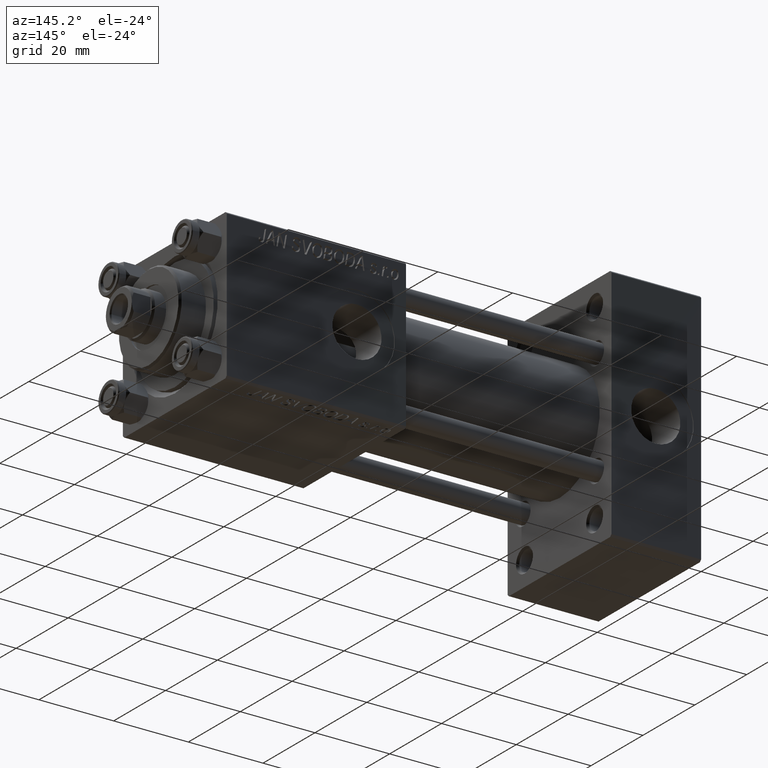
[diagram: clean part render]
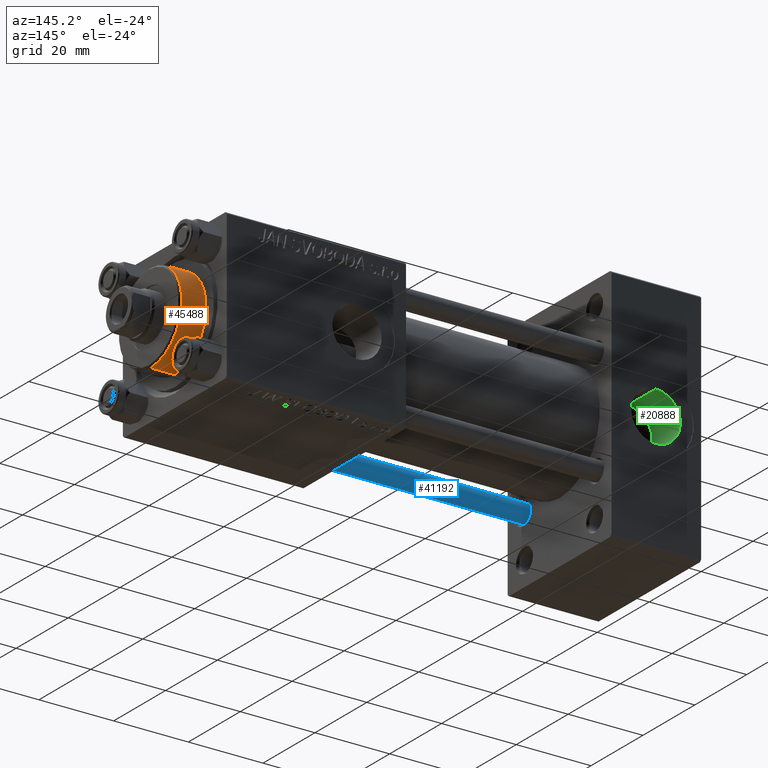
[diagram: same view with three faces highlighted in distinct colors, each labeled with its STEP entity id]
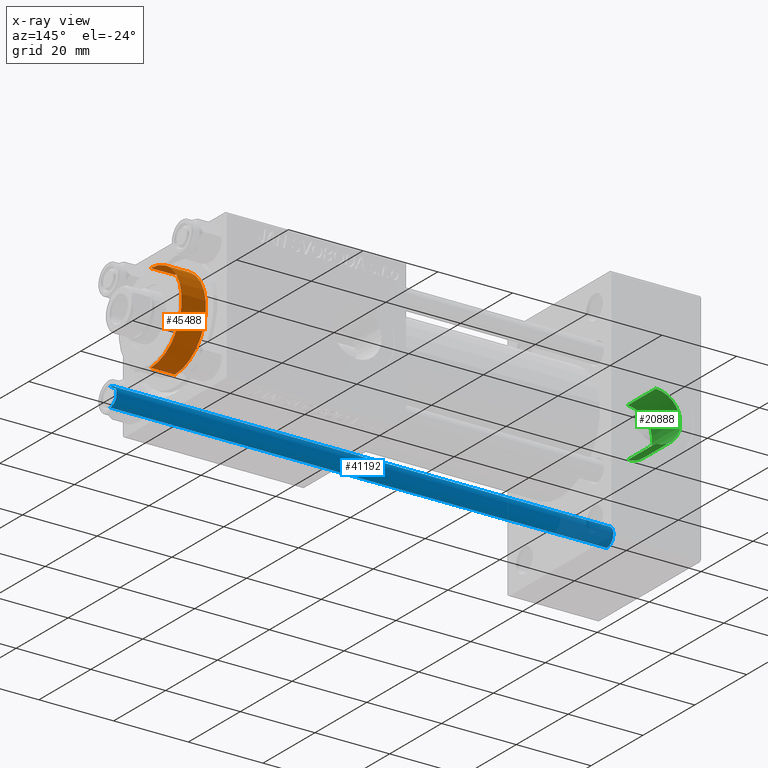
[diagram: x-ray of the same camera — body ghosted, the three highlighted faces saturated]
A machine part, auxiliary view with three faces highlighted in distinct colors.
The next image is the same camera in x-ray (body ghosted, the three faces saturated) — at least one of them is partly hidden behind the body in this view.
Their STEP definitions:

[orange] entity #45488 — the highlighted cylindrical surface (partial cylindrical patch) has radius 12 mm, axis along (-1, -0, 0).
#2493 = VERTEX_POINT ( 'NONE', #25839 ) ;
#3304 = DIRECTION ( 'NONE',  ( -0.000000000000000000, -0.000000000000000000, -1.000000000000000000 ) ) ;
#3789 = LINE ( 'NONE', #30048, #25732 ) ;
#4025 = AXIS2_PLACEMENT_3D ( 'NONE', #13262, #24861, #36455 ) ;
#6149 = CARTESIAN_POINT ( 'NONE',  ( 0.000000000000000000, 0.000000000000000000, 28.69999999999999929 ) ) ;
#6550 = EDGE_LOOP ( 'NONE', ( #27439, #17080, #16534, #18145 ) ) ;
#8633 = VECTOR ( 'NONE', #20098, 1000.000000000000000 ) ;
#10238 = DIRECTION ( 'NONE',  ( 1.000000000000000000, 0.000000000000000000, 0.000000000000000000 ) ) ;
#10440 = AXIS2_PLACEMENT_3D ( 'NONE', #6149, #29122, #44501 ) ;
#13035 = CARTESIAN_POINT ( 'NONE',  ( 12.00000000000000178, 1.469576158976824144E-15, 28.69999999999999929 ) ) ;
#13262 = CARTESIAN_POINT ( 'NONE',  ( 0.000000000000000000, 0.000000000000000000, 35.70000000000000284 ) ) ;
#16534 = ORIENTED_EDGE ( 'NONE', *, *, #43707, .T. ) ;
#17080 = ORIENTED_EDGE ( 'NONE', *, *, #31218, .T. ) ;
#18145 = ORIENTED_EDGE ( 'NONE', *, *, #43172, .F. ) ;
#19721 = VERTEX_POINT ( 'NONE', #13035 ) ;
#20098 = DIRECTION ( 'NONE',  ( -0.000000000000000000, -0.000000000000000000, -1.000000000000000000 ) ) ;
#24118 = EDGE_CURVE ( 'NONE', #45938, #49890, #26934, .T. ) ;
#24861 = DIRECTION ( 'NONE',  ( -0.000000000000000000, -0.000000000000000000, -1.000000000000000000 ) ) ;
#25732 = VECTOR ( 'NONE', #3304, 1000.000000000000000 ) ;
#25839 = CARTESIAN_POINT ( 'NONE',  ( -12.00000000000000178, 0.000000000000000000, 28.69999999999999929 ) ) ;
#26526 = CIRCLE ( 'NONE', #10440, 12.00000000000000178 ) ;
#26934 = CIRCLE ( 'NONE', #38214, 12.00000000000000178 ) ;
#27404 = CARTESIAN_POINT ( 'NONE',  ( 12.00000000000000178, 1.469576158976824144E-15, 35.70000000000000284 ) ) ;
#27439 = ORIENTED_EDGE ( 'NONE', *, *, #24118, .T. ) ;
#29122 = DIRECTION ( 'NONE',  ( 0.000000000000000000, 0.000000000000000000, 1.000000000000000000 ) ) ;
#30048 = CARTESIAN_POINT ( 'NONE',  ( -12.00000000000000178, 0.000000000000000000, 35.70000000000000284 ) ) ;
#31218 = EDGE_CURVE ( 'NONE', #49890, #19721, #46319, .T. ) ;
#32949 = DIRECTION ( 'NONE',  ( 0.000000000000000000, 0.000000000000000000, -1.000000000000000000 ) ) ;
#36207 = CYLINDRICAL_SURFACE ( 'NONE', #4025, 12.00000000000000178 ) ;
#36455 = DIRECTION ( 'NONE',  ( -1.000000000000000000, 0.000000000000000000, 0.000000000000000000 ) ) ;
#38214 = AXIS2_PLACEMENT_3D ( 'NONE', #40508, #32949, #10238 ) ;
#40242 = FACE_OUTER_BOUND ( 'NONE', #6550, .T. ) ;
#40508 = CARTESIAN_POINT ( 'NONE',  ( 0.000000000000000000, 0.000000000000000000, 35.19999999999999574 ) ) ;
#41735 = CARTESIAN_POINT ( 'NONE',  ( -12.00000000000000178, 0.000000000000000000, 35.19999999999999574 ) ) ;
#43172 = EDGE_CURVE ( 'NONE', #45938, #2493, #3789, .T. ) ;
#43707 = EDGE_CURVE ( 'NONE', #19721, #2493, #26526, .T. ) ;
#44501 = DIRECTION ( 'NONE',  ( 1.000000000000000000, 0.000000000000000000, 0.000000000000000000 ) ) ;
#45013 = CARTESIAN_POINT ( 'NONE',  ( 12.00000000000000178, 1.469576158976824144E-15, 35.19999999999999574 ) ) ;
#45488 = ADVANCED_FACE ( 'NONE', ( #40242 ), #36207, .T. ) ;
#45938 = VERTEX_POINT ( 'NONE', #41735 ) ;
#46319 = LINE ( 'NONE', #27404, #8633 ) ;
#49890 = VERTEX_POINT ( 'NONE', #45013 ) ;

[blue] entity #41192 — the highlighted cylindrical surface (edge-blend (fillet) strip) has radius 2.5 mm, axis along (1, -0, -0).
#2330 = DIRECTION ( 'NONE',  ( -0.000000000000000000, -0.000000000000000000, -1.000000000000000000 ) ) ;
#2513 = CARTESIAN_POINT ( 'NONE',  ( 2.500000000000000000, 3.061616997868383141E-16, 134.0000000000000000 ) ) ;
#3393 = LINE ( 'NONE', #18810, #20818 ) ;
#3518 = ORIENTED_EDGE ( 'NONE', *, *, #37271, .T. ) ;
#7521 = VERTEX_POINT ( 'NONE', #24344 ) ;
#7535 = ORIENTED_EDGE ( 'NONE', *, *, #48772, .T. ) ;
#8017 = DIRECTION ( 'NONE',  ( 1.000000000000000000, 0.000000000000000000, 0.000000000000000000 ) ) ;
#11504 = DIRECTION ( 'NONE',  ( 1.000000000000000000, 0.000000000000000000, 0.000000000000000000 ) ) ;
#13617 = ORIENTED_EDGE ( 'NONE', *, *, #41032, .F. ) ;
#13900 = VERTEX_POINT ( 'NONE', #25242 ) ;
#14136 = LINE ( 'NONE', #2513, #24043 ) ;
#14657 = AXIS2_PLACEMENT_3D ( 'NONE', #22916, #16101, #8017 ) ;
#16101 = DIRECTION ( 'NONE',  ( 0.000000000000000000, 0.000000000000000000, -1.000000000000000000 ) ) ;
#16290 = DIRECTION ( 'NONE',  ( -0.000000000000000000, -0.000000000000000000, 1.000000000000000000 ) ) ;
#17581 = VERTEX_POINT ( 'NONE', #28196 ) ;
#18810 = CARTESIAN_POINT ( 'NONE',  ( -2.500000000000000000, 0.000000000000000000, 134.0000000000000000 ) ) ;
#19534 = DIRECTION ( 'NONE',  ( -0.000000000000000000, -0.000000000000000000, -1.000000000000000000 ) ) ;
#20818 = VECTOR ( 'NONE', #19534, 1000.000000000000000 ) ;
#21329 = EDGE_CURVE ( 'NONE', #37428, #17581, #27624, .T. ) ;
#21522 = CYLINDRICAL_SURFACE ( 'NONE', #48218, 2.500000000000000000 ) ;
#22916 = CARTESIAN_POINT ( 'NONE',  ( 0.000000000000000000, 0.000000000000000000, 133.5000000000000568 ) ) ;
#23222 = ORIENTED_EDGE ( 'NONE', *, *, #21329, .T. ) ;
#24043 = VECTOR ( 'NONE', #40368, 1000.000000000000000 ) ;
#24344 = CARTESIAN_POINT ( 'NONE',  ( -2.500000000000000000, 0.000000000000000000, 133.5000000000000568 ) ) ;
#25242 = CARTESIAN_POINT ( 'NONE',  ( 2.500000000000000000, 3.061616997868383141E-16, 133.5000000000000568 ) ) ;
#26833 = AXIS2_PLACEMENT_3D ( 'NONE', #46290, #16290, #11504 ) ;
#27624 = CIRCLE ( 'NONE', #26833, 2.500000000000000000 ) ;
#28196 = CARTESIAN_POINT ( 'NONE',  ( -2.500000000000000000, 0.000000000000000000, 0.4999999999999726885 ) ) ;
#36896 = CARTESIAN_POINT ( 'NONE',  ( 0.000000000000000000, 0.000000000000000000, 134.0000000000000000 ) ) ;
#37271 = EDGE_CURVE ( 'NONE', #13900, #37428, #14136, .T. ) ;
#37428 = VERTEX_POINT ( 'NONE', #49206 ) ;
#40368 = DIRECTION ( 'NONE',  ( -0.000000000000000000, -0.000000000000000000, -1.000000000000000000 ) ) ;
#41032 = EDGE_CURVE ( 'NONE', #7521, #17581, #3393, .T. ) ;
#41192 = ADVANCED_FACE ( 'NONE', ( #45223 ), #21522, .T. ) ;
#44712 = DIRECTION ( 'NONE',  ( -1.000000000000000000, 0.000000000000000000, 0.000000000000000000 ) ) ;
#44919 = EDGE_LOOP ( 'NONE', ( #7535, #3518, #23222, #13617 ) ) ;
#45223 = FACE_OUTER_BOUND ( 'NONE', #44919, .T. ) ;
#46290 = CARTESIAN_POINT ( 'NONE',  ( 0.000000000000000000, 0.000000000000000000, 0.4999999999999726885 ) ) ;
#46824 = CIRCLE ( 'NONE', #14657, 2.500000000000000000 ) ;
#48218 = AXIS2_PLACEMENT_3D ( 'NONE', #36896, #2330, #44712 ) ;
#48772 = EDGE_CURVE ( 'NONE', #7521, #13900, #46824, .T. ) ;
#49206 = CARTESIAN_POINT ( 'NONE',  ( 2.500000000000000000, 3.061616997868383141E-16, 0.4999999999999726885 ) ) ;

[green] entity #20888 — the highlighted cylindrical surface (edge-blend (fillet) strip) has radius 6.58 mm, axis along (0, 1, 0).
#72 = EDGE_CURVE ( 'NONE', #44613, #26878, #37336, .T. ) ;
#112 = EDGE_CURVE ( 'NONE', #29713, #1210, #33061, .T. ) ;
#1209 = DIRECTION ( 'NONE',  ( 0.000000000000000000, 1.000000000000000000, 0.000000000000000000 ) ) ;
#1210 = VERTEX_POINT ( 'NONE', #27971 ) ;
#1254 = EDGE_CURVE ( 'NONE', #26878, #1210, #30229, .T. ) ;
#5512 = DIRECTION ( 'NONE',  ( 0.000000000000000000, 0.000000000000000000, 1.000000000000000000 ) ) ;
#6561 = ORIENTED_EDGE ( 'NONE', *, *, #23947, .T. ) ;
#6588 = CARTESIAN_POINT ( 'NONE',  ( 12.00000000000000000, 19.79999999999999716, -6.579999999999998295 ) ) ;
#8426 = AXIS2_PLACEMENT_3D ( 'NONE', #20009, #8640, #30848 ) ;
#8640 = DIRECTION ( 'NONE',  ( -0.000000000000000000, -1.000000000000000000, -0.000000000000000000 ) ) ;
#10609 = DIRECTION ( 'NONE',  ( -0.000000000000000000, 1.000000000000000000, -0.000000000000000000 ) ) ;
#13721 = ORIENTED_EDGE ( 'NONE', *, *, #1254, .T. ) ;
#13914 = DIRECTION ( 'NONE',  ( -0.000000000000000000, 1.000000000000000000, -0.000000000000000000 ) ) ;
#14907 = VECTOR ( 'NONE', #10609, 1000.000000000000000 ) ;
#15662 = ORIENTED_EDGE ( 'NONE', *, *, #112, .F. ) ;
#16296 = EDGE_LOOP ( 'NONE', ( #6561, #43463, #13721, #15662 ) ) ;
#17946 = CARTESIAN_POINT ( 'NONE',  ( 12.00000000000000000, 8.999999999999998224, 6.579999999999998295 ) ) ;
#18475 = CARTESIAN_POINT ( 'NONE',  ( 12.00000000000000000, 8.999999999999998224, 0.000000000000000000 ) ) ;
#20009 = CARTESIAN_POINT ( 'NONE',  ( 12.00000000000000000, 8.939999999999994174, 0.000000000000000000 ) ) ;
#20888 = ADVANCED_FACE ( 'NONE', ( #32841 ), #29793, .F. ) ;
#21262 = CARTESIAN_POINT ( 'NONE',  ( 12.00000000000000000, 8.939999999999994174, 6.579999999999998295 ) ) ;
#21343 = VECTOR ( 'NONE', #21956, 1000.000000000000000 ) ;
#21461 = CARTESIAN_POINT ( 'NONE',  ( 12.00000000000000000, 8.999999999999998224, -6.579999999999998295 ) ) ;
#21956 = DIRECTION ( 'NONE',  ( -0.000000000000000000, 1.000000000000000000, -0.000000000000000000 ) ) ;
#23947 = EDGE_CURVE ( 'NONE', #29713, #44613, #39824, .T. ) ;
#26878 = VERTEX_POINT ( 'NONE', #6588 ) ;
#27971 = CARTESIAN_POINT ( 'NONE',  ( 12.00000000000000000, 19.79999999999999716, 6.579999999999998295 ) ) ;
#29713 = VERTEX_POINT ( 'NONE', #21262 ) ;
#29793 = CYLINDRICAL_SURFACE ( 'NONE', #44554, 6.579999999999998295 ) ;
#30229 = CIRCLE ( 'NONE', #33462, 6.579999999999998295 ) ;
#30848 = DIRECTION ( 'NONE',  ( 0.000000000000000000, 0.000000000000000000, 1.000000000000000000 ) ) ;
#32841 = FACE_OUTER_BOUND ( 'NONE', #16296, .T. ) ;
#33061 = LINE ( 'NONE', #17946, #21343 ) ;
#33330 = DIRECTION ( 'NONE',  ( 0.000000000000000000, 0.000000000000000000, 1.000000000000000000 ) ) ;
#33462 = AXIS2_PLACEMENT_3D ( 'NONE', #47142, #1209, #5512 ) ;
#37336 = LINE ( 'NONE', #21461, #14907 ) ;
#39824 = CIRCLE ( 'NONE', #8426, 6.579999999999998295 ) ;
#43463 = ORIENTED_EDGE ( 'NONE', *, *, #72, .T. ) ;
#44554 = AXIS2_PLACEMENT_3D ( 'NONE', #18475, #13914, #33330 ) ;
#44613 = VERTEX_POINT ( 'NONE', #45569 ) ;
#45569 = CARTESIAN_POINT ( 'NONE',  ( 12.00000000000000000, 8.939999999999994174, -6.579999999999998295 ) ) ;
#47142 = CARTESIAN_POINT ( 'NONE',  ( 12.00000000000000000, 19.79999999999999716, 0.000000000000000000 ) ) ;